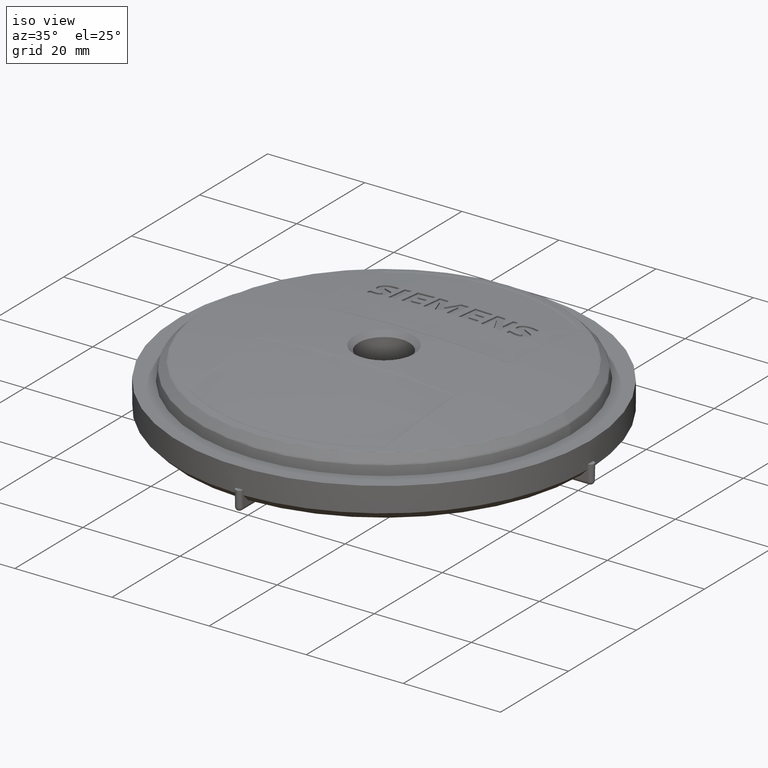
[diagram: clean part render]
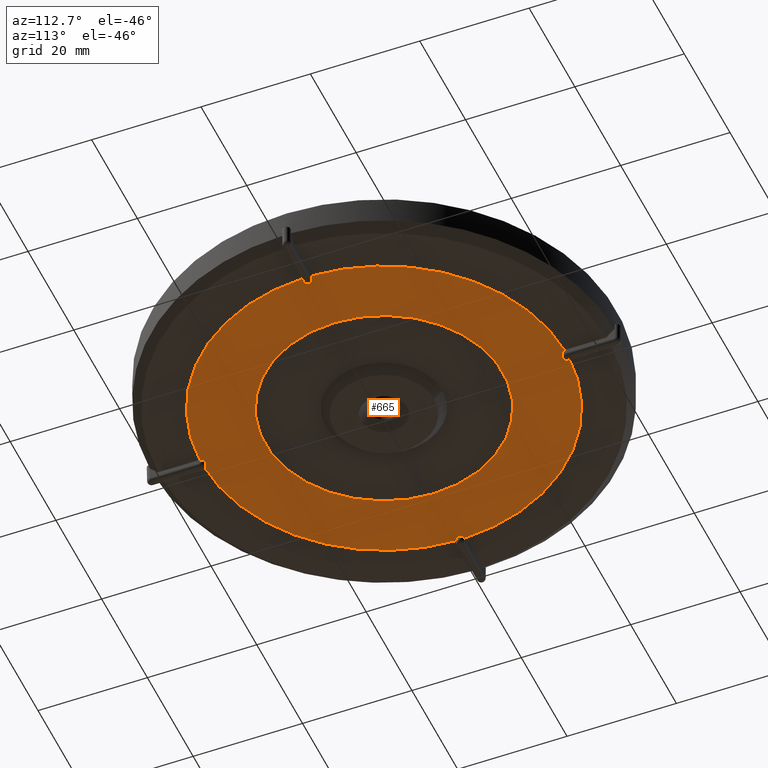
[diagram: tour spotlight — one face highlighted and labeled with its STEP entity id]
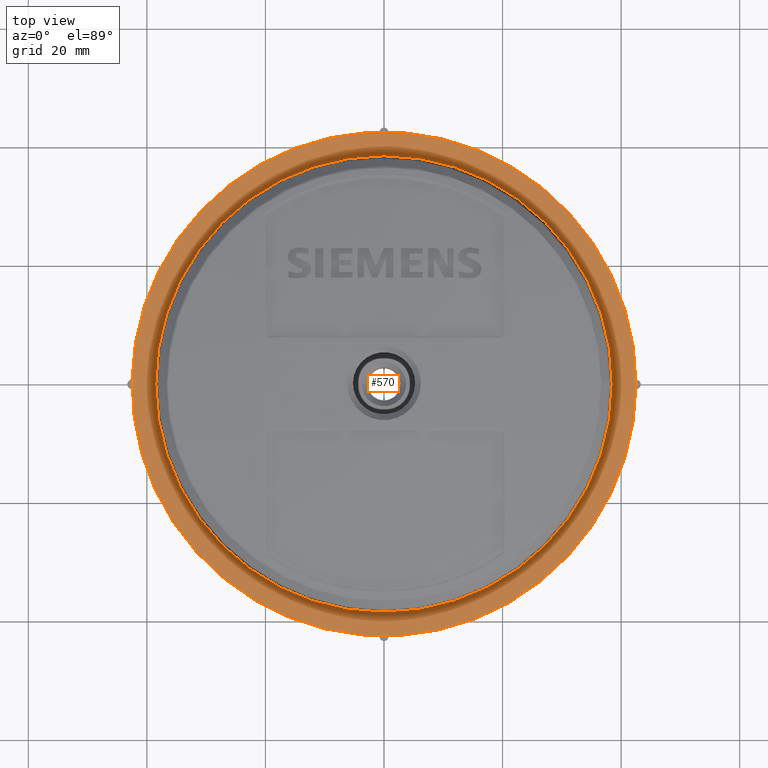
[diagram: tour spotlight — one face highlighted and labeled with its STEP entity id]
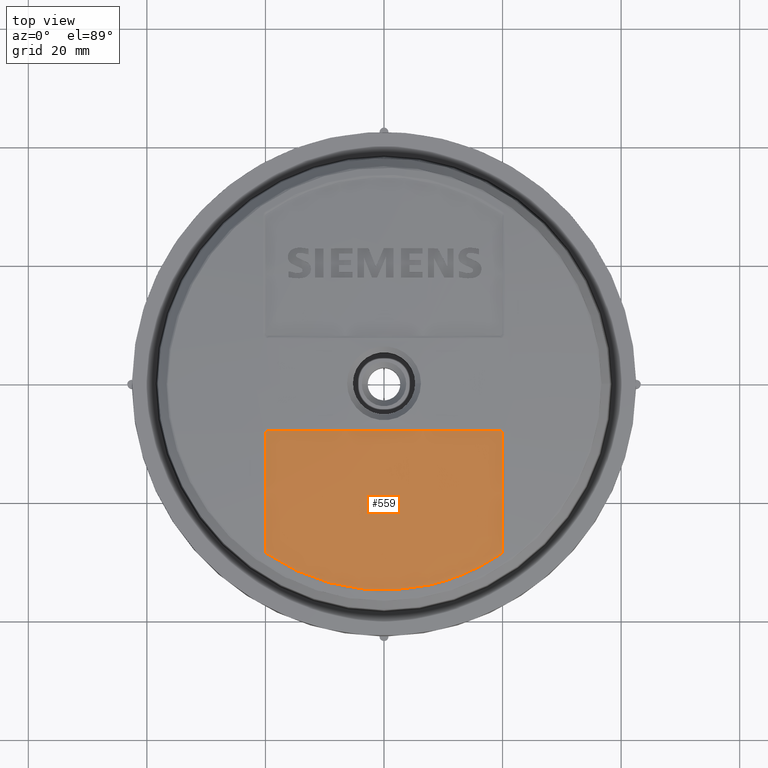
[diagram: tour spotlight — one face highlighted and labeled with its STEP entity id]
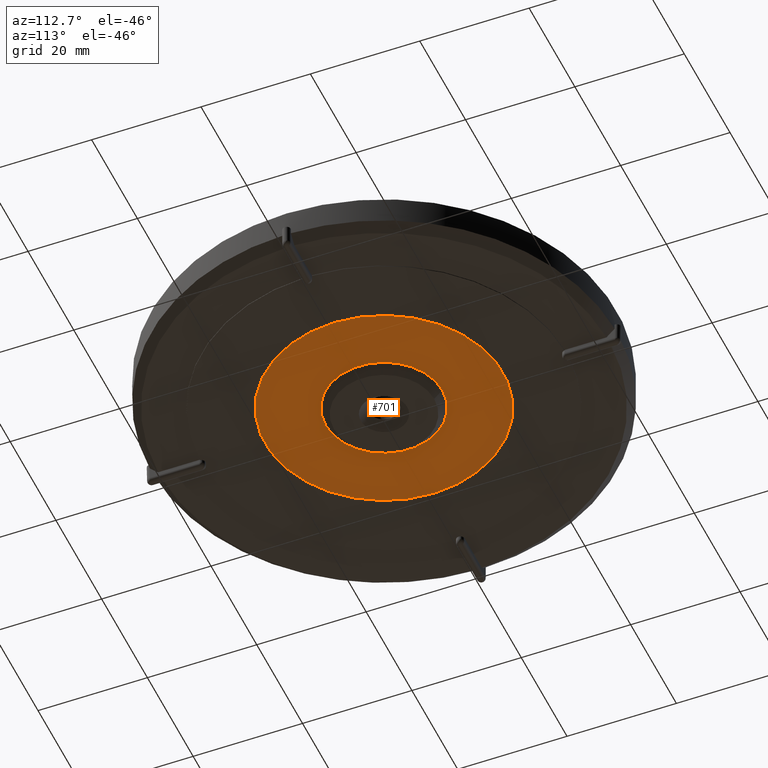
[diagram: tour spotlight — one face highlighted and labeled with its STEP entity id]
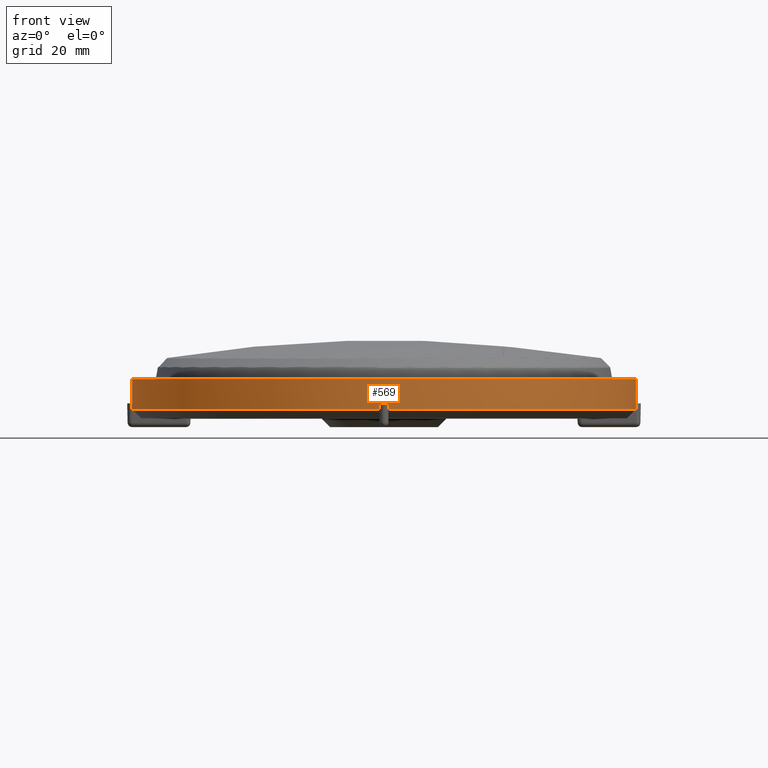
[diagram: tour spotlight — one face highlighted and labeled with its STEP entity id]
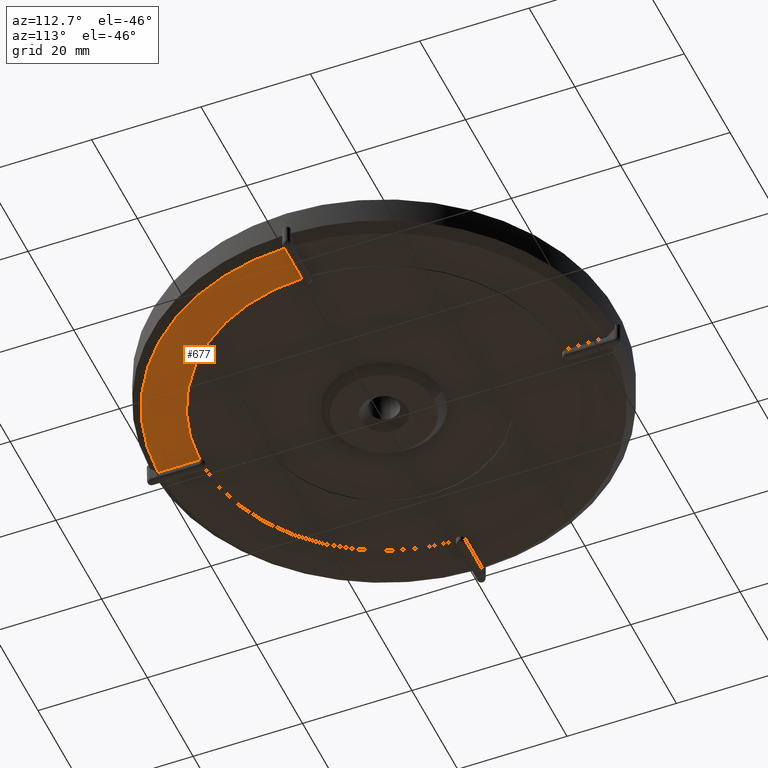
[diagram: tour spotlight — one face highlighted and labeled with its STEP entity id]
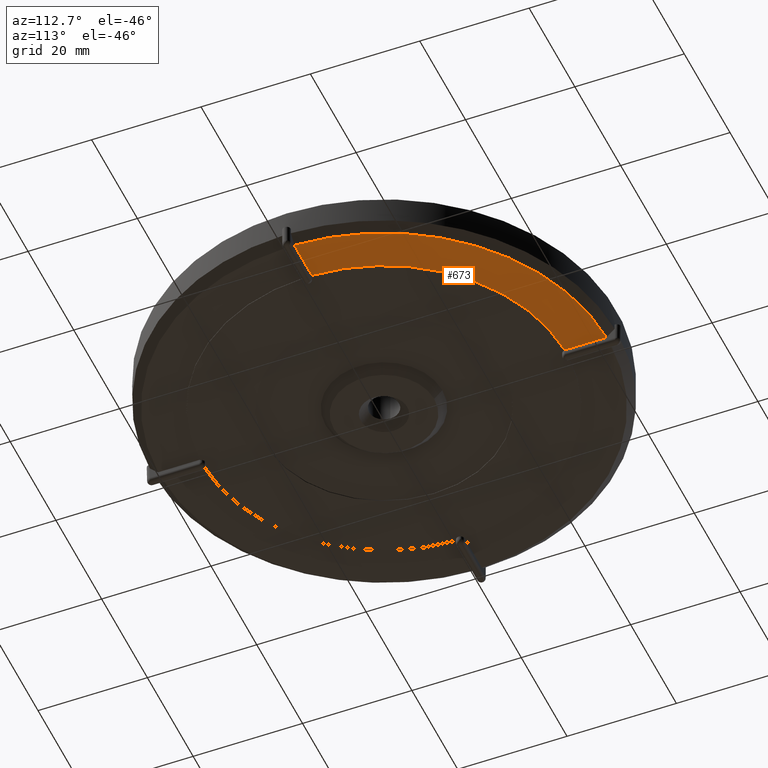
[diagram: tour spotlight — one face highlighted and labeled with its STEP entity id]
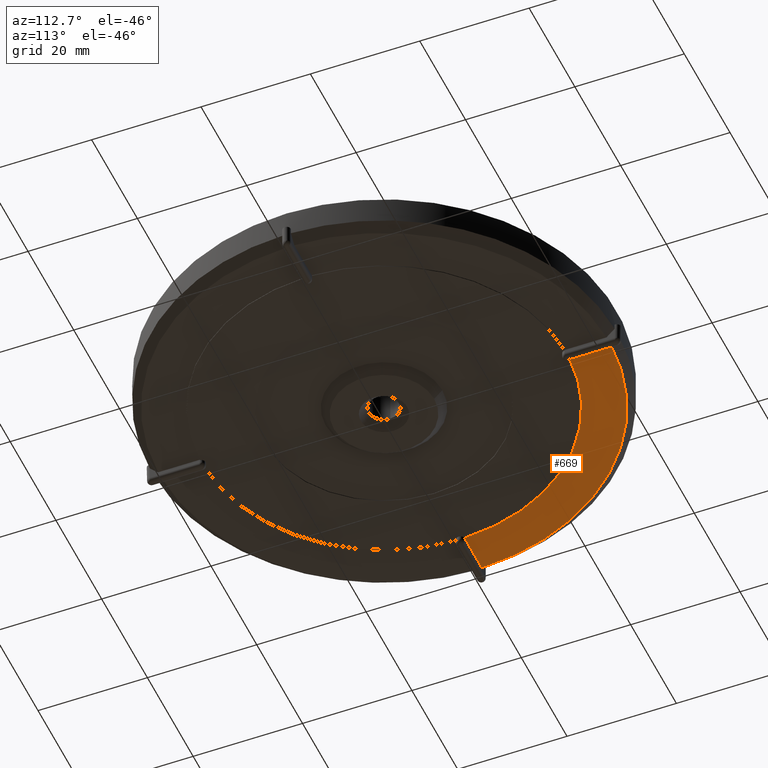
[diagram: tour spotlight — one face highlighted and labeled with its STEP entity id]
A machine part: a face-by-face anatomy tour. The part has 146 B-rep faces; the first image is the clean iso view, then the 8 largest visible faces are spotlighted one at a time (largest first), each with its STEP entity span.

Face 1 — auxiliary view, entity #665. In plain terms, the highlighted planar face has unit normal (0, 0, -1).
Definition (entity closure, byte-faithful):
#407=PLANE('',#2616);
#462=FACE_BOUND('',#978,.T.);
#463=FACE_BOUND('',#979,.T.);
#515=CIRCLE('',#2582,21.75);
#523=CIRCLE('',#2594,33.35);
#528=CIRCLE('',#2602,33.35);
#533=CIRCLE('',#2609,33.35);
#534=CIRCLE('',#2611,0.750000000000001);
#535=CIRCLE('',#2612,33.35);
#536=CIRCLE('',#2613,0.75);
#537=CIRCLE('',#2614,0.750000000000001);
#538=CIRCLE('',#2615,0.75);
#665=ADVANCED_FACE('',(#462,#463),#407,.T.);
#978=EDGE_LOOP('',(#1550));
#979=EDGE_LOOP('',(#1551,#1552,#1553,#1554,#1555,#1556,#1557,#1558));
#1550=ORIENTED_EDGE('',*,*,#2256,.T.);
#1551=ORIENTED_EDGE('',*,*,#2279,.F.);
#1552=ORIENTED_EDGE('',*,*,#2281,.F.);
#1553=ORIENTED_EDGE('',*,*,#2282,.F.);
#1554=ORIENTED_EDGE('',*,*,#2283,.F.);
#1555=ORIENTED_EDGE('',*,*,#2265,.T.);
#1556=ORIENTED_EDGE('',*,*,#2284,.F.);
#1557=ORIENTED_EDGE('',*,*,#2271,.T.);
#1558=ORIENTED_EDGE('',*,*,#2285,.F.);
#1936=VERTEX_POINT('',#8725);
#1945=VERTEX_POINT('',#8746);
#1946=VERTEX_POINT('',#8748);
#1951=VERTEX_POINT('',#8762);
#1952=VERTEX_POINT('',#8763);
#1959=VERTEX_POINT('',#8779);
#1960=VERTEX_POINT('',#8781);
#1961=VERTEX_POINT('',#8785);
#1962=VERTEX_POINT('',#8787);
#2256=EDGE_CURVE('',#1936,#1936,#515,.T.);
#2265=EDGE_CURVE('',#1946,#1945,#523,.T.);
#2271=EDGE_CURVE('',#1951,#1952,#528,.T.);
#2279=EDGE_CURVE('',#1959,#1960,#533,.T.);
#2281=EDGE_CURVE('',#1961,#1959,#534,.T.);
#2282=EDGE_CURVE('',#1962,#1961,#535,.T.);
#2283=EDGE_CURVE('',#1946,#1962,#536,.T.);
#2284=EDGE_CURVE('',#1951,#1945,#537,.T.);
#2285=EDGE_CURVE('',#1960,#1952,#538,.T.);
#2582=AXIS2_PLACEMENT_3D('',#8724,#2918,#2919);
#2594=AXIS2_PLACEMENT_3D('',#8747,#2943,#2944);
#2602=AXIS2_PLACEMENT_3D('',#8761,#2960,#2961);
#2609=AXIS2_PLACEMENT_3D('',#8780,#2977,#2978);
#2611=AXIS2_PLACEMENT_3D('',#8784,#2982,#2983);
#2612=AXIS2_PLACEMENT_3D('',#8786,#2984,#2985);
#2613=AXIS2_PLACEMENT_3D('',#8788,#2986,#2987);
#2614=AXIS2_PLACEMENT_3D('',#8789,#2988,#2989);
#2615=AXIS2_PLACEMENT_3D('',#8790,#2990,#2991);
#2616=AXIS2_PLACEMENT_3D('',#8791,#2992,#2993);
#2918=DIRECTION('',(0.,0.,1.));
#2919=DIRECTION('',(1.,0.,0.));
#2943=DIRECTION('',(0.,0.,-1.));
#2944=DIRECTION('',(-1.,0.,0.));
#2960=DIRECTION('',(0.,0.,-1.));
#2961=DIRECTION('',(-1.,0.,0.));
#2977=DIRECTION('',(0.,0.,1.));
#2978=DIRECTION('',(-1.,0.,0.));
#2982=DIRECTION('',(0.,0.,-1.));
#2983=DIRECTION('',(1.,0.,0.));
#2984=DIRECTION('',(0.,0.,1.));
#2985=DIRECTION('',(-1.,3.5527136788005E-15,0.));
#2986=DIRECTION('',(0.,0.,-1.));
#2987=DIRECTION('',(-1.,0.,0.));
#2988=DIRECTION('',(0.,0.,-1.));
#2989=DIRECTION('',(1.,7.105427357601E-15,0.));
#2990=DIRECTION('',(0.,0.,-1.));
#2991=DIRECTION('',(-1.,0.,0.));
#2992=DIRECTION('',(0.,0.,-1.));
#2993=DIRECTION('',(1.,0.,0.));
#8724=CARTESIAN_POINT('',(5.02898827078395E-30,7.86315457190769E-15,1.5));
#8725=CARTESIAN_POINT('',(21.75,7.86315457190769E-15,1.5));
#8746=CARTESIAN_POINT('',(33.3416168768728,0.747724154306903,1.5));
#8747=CARTESIAN_POINT('',(5.02898827078395E-30,7.86315457190769E-15,1.5));
#8748=CARTESIAN_POINT('',(0.747724154306895,33.3416168768728,1.5));
#8761=CARTESIAN_POINT('',(5.02898827078395E-30,7.86315457190769E-15,1.5));
#8762=CARTESIAN_POINT('',(33.3416168768728,-0.747724154306887,1.5));
#8763=CARTESIAN_POINT('',(0.747724154306895,-33.3416168768728,1.5));
#8779=CARTESIAN_POINT('',(-33.3416168768728,-0.747724154306887,1.5));
#8780=CARTESIAN_POINT('',(5.02898827078395E-30,7.86315457190769E-15,1.5));
#8781=CARTESIAN_POINT('',(-0.747724154306895,-33.3416168768728,1.5));
#8784=CARTESIAN_POINT('',(-33.4,7.86315457190769E-15,1.5));
#8785=CARTESIAN_POINT('',(-33.3416168768728,0.747724154306903,1.5));
#8786=CARTESIAN_POINT('',(5.02898827078395E-30,7.86315457190769E-15,1.5));
#8787=CARTESIAN_POINT('',(-0.747724154306895,33.3416168768728,1.5));
#8788=CARTESIAN_POINT('',(5.02898827078395E-30,33.4,1.5));
#8789=CARTESIAN_POINT('',(33.4,7.86315457190769E-15,1.5));
#8790=CARTESIAN_POINT('',(5.02898827078395E-30,-33.4,1.5));
#8791=CARTESIAN_POINT('',(5.02898827078395E-30,7.86315457190769E-15,1.5));

Face 2 — top view, entity #570. In plain terms, the highlighted planar face has unit normal (0, 0, -1).
Definition (entity closure, byte-faithful):
#382=PLANE('',#2521);
#440=FACE_BOUND('',#868,.T.);
#441=FACE_BOUND('',#869,.T.);
#477=CIRCLE('',#2502,38.4999999966234);
#482=CIRCLE('',#2511,42.5);
#570=ADVANCED_FACE('',(#440,#441),#382,.F.);
#868=EDGE_LOOP('',(#1079));
#869=EDGE_LOOP('',(#1080));
#1079=ORIENTED_EDGE('',*,*,#2026,.F.);
#1080=ORIENTED_EDGE('',*,*,#2031,.F.);
#1780=VERTEX_POINT('',#3823);
#1785=VERTEX_POINT('',#3837);
#2026=EDGE_CURVE('',#1780,#1780,#477,.T.);
#2031=EDGE_CURVE('',#1785,#1785,#482,.T.);
#2502=AXIS2_PLACEMENT_3D('',#3822,#2694,#2695);
#2511=AXIS2_PLACEMENT_3D('',#3836,#2712,#2713);
#2521=AXIS2_PLACEMENT_3D('',#3871,#2740,#2741);
#2694=DIRECTION('',(0.,0.,1.));
#2695=DIRECTION('',(-1.,0.,0.));
#2712=DIRECTION('',(0.,0.,-1.));
#2713=DIRECTION('',(1.,0.,0.));
#2740=DIRECTION('',(0.,0.,-1.));
#2741=DIRECTION('',(1.,0.,0.));
#3822=CARTESIAN_POINT('',(5.02898827078395E-30,7.86315457190769E-15,8.2000000191495));
#3823=CARTESIAN_POINT('',(-38.4999999966234,7.86315457190769E-15,8.2000000191495));
#3836=CARTESIAN_POINT('',(5.02898827078395E-30,7.86315457190769E-15,8.2));
#3837=CARTESIAN_POINT('',(42.5,7.86315457190769E-15,8.2));
#3871=CARTESIAN_POINT('',(38.5,7.86315457190769E-15,8.2));

Face 3 — top view, entity #559. In plain terms, the highlighted spherical surface has radius 226.9 mm.
Definition (entity closure, byte-faithful):
#559=ADVANCED_FACE('',(#723),#705,.T.);
#705=SPHERICAL_SURFACE('',#2494,226.9);
#723=FACE_OUTER_BOUND('',#850,.T.);
#850=EDGE_LOOP('',(#1023,#1024,#1025,#1026,#1027,#1028,#1029,#1030,#1031));
#1023=ORIENTED_EDGE('',*,*,#1996,.T.);
#1024=ORIENTED_EDGE('',*,*,#1997,.T.);
#1025=ORIENTED_EDGE('',*,*,#1998,.T.);
#1026=ORIENTED_EDGE('',*,*,#1999,.T.);
#1027=ORIENTED_EDGE('',*,*,#2000,.T.);
#1028=ORIENTED_EDGE('',*,*,#2001,.T.);
#1029=ORIENTED_EDGE('',*,*,#2002,.T.);
#1030=ORIENTED_EDGE('',*,*,#2003,.T.);
#1031=ORIENTED_EDGE('',*,*,#2004,.T.);
#1751=VERTEX_POINT('',#3173);
#1752=VERTEX_POINT('',#3174);
#1753=VERTEX_POINT('',#3179);
#1754=VERTEX_POINT('',#3184);
#1755=VERTEX_POINT('',#3195);
#1756=VERTEX_POINT('',#3204);
#1757=VERTEX_POINT('',#3215);
#1758=VERTEX_POINT('',#3238);
#1759=VERTEX_POINT('',#3255);
#1996=EDGE_CURVE('',#1751,#1752,#2360,.T.);
#1997=EDGE_CURVE('',#1752,#1753,#2361,.T.);
#1998=EDGE_CURVE('',#1753,#1754,#2362,.T.);
#1999=EDGE_CURVE('',#1754,#1755,#2363,.T.);
#2000=EDGE_CURVE('',#1755,#1756,#2364,.T.);
#2001=EDGE_CURVE('',#1756,#1757,#2365,.T.);
#2002=EDGE_CURVE('',#1757,#1758,#2366,.T.);
#2003=EDGE_CURVE('',#1758,#1759,#2367,.T.);
#2004=EDGE_CURVE('',#1759,#1751,#2368,.T.);
#2360=B_SPLINE_CURVE_WITH_KNOTS('',3,(#3163,#3164,#3165,#3166,#3167,#3168,
#3169,#3170,#3171,#3172),.UNSPECIFIED.,.F.,.F.,(4,3,3,4),(0.,0.441844815911512,
0.883763586078794,1.),.UNSPECIFIED.);
#2361=B_SPLINE_CURVE_WITH_KNOTS('',3,(#3175,#3176,#3177,#3178),
 .UNSPECIFIED.,.F.,.F.,(4,4),(0.,1.),.UNSPECIFIED.);
#2362=B_SPLINE_CURVE_WITH_KNOTS('',3,(#3180,#3181,#3182,#3183),
 .UNSPECIFIED.,.F.,.F.,(4,4),(0.,1.),.UNSPECIFIED.);
#2363=B_SPLINE_CURVE_WITH_KNOTS('',3,(#3185,#3186,#3187,#3188,#3189,#3190,
#3191,#3192,#3193,#3194),.UNSPECIFIED.,.F.,.F.,(4,3,3,4),(0.,0.349748603555243,
0.699670056190108,1.),.UNSPECIFIED.);
#2364=B_SPLINE_CURVE_WITH_KNOTS('',3,(#3196,#3197,#3198,#3199,#3200,#3201,
#3202,#3203),.UNSPECIFIED.,.F.,.F.,(4,2,2,4),(0.,0.25,0.5,1.),
 .UNSPECIFIED.);
#2365=B_SPLINE_CURVE_WITH_KNOTS('',3,(#3205,#3206,#3207,#3208,#3209,#3210,
#3211,#3212,#3213,#3214),.UNSPECIFIED.,.F.,.F.,(4,3,3,4),(0.,0.34457287359404,
0.688887980524164,1.),.UNSPECIFIED.);
#2366=B_SPLINE_CURVE_WITH_KNOTS('',3,(#3216,#3217,#3218,#3219,#3220,#3221,
#3222,#3223,#3224,#3225,#3226,#3227,#3228,#3229,#3230,#3231,#3232,#3233,
#3234,#3235,#3236,#3237),.UNSPECIFIED.,.F.,.F.,(4,3,3,3,3,3,3,4),(0.,0.0398692730273485,
0.199353699502414,0.35883812525478,0.43857740471627,0.59806183141129,0.757546257585214,
1.),.UNSPECIFIED.);
#2367=B_SPLINE_CURVE_WITH_KNOTS('',3,(#3239,#3240,#3241,#3242,#3243,#3244,
#3245,#3246,#3247,#3248,#3249,#3250,#3251,#3252,#3253,#3254),
 .UNSPECIFIED.,.F.,.F.,(4,3,3,3,3,4),(0.,0.214425581148635,0.428424755097419,
0.647072766724221,0.860592475561766,1.),.UNSPECIFIED.);
#2368=B_SPLINE_CURVE_WITH_KNOTS('',3,(#3256,#3257,#3258,#3259),
 .UNSPECIFIED.,.F.,.F.,(4,4),(0.,1.),.UNSPECIFIED.);
#2494=AXIS2_PLACEMENT_3D('',#3260,#2678,#2679);
#2678=DIRECTION('',(1.,5.99231979005811E-16,-6.23858244335423E-15));
#2679=DIRECTION('',(6.34577210855718E-15,-0.0345442266834354,0.999403170098456));
#3163=CARTESIAN_POINT('',(-19.4999999393654,-8.00000043448486,13.6489235000314));
#3164=CARTESIAN_POINT('',(-19.5562036281012,-8.00000798782321,13.6440720589185));
#3165=CARTESIAN_POINT('',(-19.6131390241475,-8.00978265560136,13.6387898728615));
#3166=CARTESIAN_POINT('',(-19.6661211621882,-8.02842294156388,13.6335150313193));
#3167=CARTESIAN_POINT('',(-19.7191050741138,-8.04706385161822,13.6282400131713));
#3168=CARTESIAN_POINT('',(-19.7695598624239,-8.07518531548535,13.6228265075518));
#3169=CARTESIAN_POINT('',(-19.8133501440105,-8.11038413197744,13.6177217232106));
#3170=CARTESIAN_POINT('',(-19.825021693527,-8.11976577362774,13.6163611303792));
#3171=CARTESIAN_POINT('',(-19.8362856836583,-8.12968123480841,13.6150156149987));
#3172=CARTESIAN_POINT('',(-19.847067800053,-8.14007785497986,13.6136935952991));
#3173=CARTESIAN_POINT('',(-19.4999993466149,-7.99999839714231,13.6489166298762));
#3174=CARTESIAN_POINT('',(-19.8470673581621,-8.14007831649309,13.6136936207594));
#3175=CARTESIAN_POINT('',(-19.8470676922342,-8.14007803546075,13.6136935982686));
#3176=CARTESIAN_POINT('',(-19.9497112354551,-8.23549067654348,13.6012365693895));
#3177=CARTESIAN_POINT('',(-19.9998963483916,-8.35543505709511,13.5923956348657));
#3178=CARTESIAN_POINT('',(-19.9976322592622,-8.49992832263777,13.5871582273481));
#3179=CARTESIAN_POINT('',(-19.9987420503483,-8.50000040961973,13.5884555611073));
#3180=CARTESIAN_POINT('',(-19.9999826780485,-8.49994373125131,13.5869495265606));
#3181=CARTESIAN_POINT('',(-19.999982560637,-15.1133495881016,13.3380593532683));
#3182=CARTESIAN_POINT('',(-19.9999965513895,-21.7123981455922,12.7988361116867));
#3183=CARTESIAN_POINT('',(-19.9999998998205,-28.2784810212322,11.9708025207255));
#3184=CARTESIAN_POINT('',(-19.9999999327874,-28.2784810152145,11.9708024730073));
#3185=CARTESIAN_POINT('',(-19.9999999327874,-28.2784810152145,11.9708024730073));
#3186=CARTESIAN_POINT('',(-20.00000034399,-28.33427483015,11.9637664093513));
#3187=CARTESIAN_POINT('',(-19.9903991424039,-28.3909503641732,11.9574538097474));
#3188=CARTESIAN_POINT('',(-19.9718736448377,-28.443805920091,11.9523988987158));
#3189=CARTESIAN_POINT('',(-19.9533424233254,-28.4966778071413,11.9473424258347));
#3190=CARTESIAN_POINT('',(-19.9253927188913,-28.5472126141004,11.9433995580412));
#3191=CARTESIAN_POINT('',(-19.8902441284095,-28.5910631349691,11.9409259097881));
#3192=CARTESIAN_POINT('',(-19.859961017234,-28.6288436029869,11.9387946788047));
#3193=CARTESIAN_POINT('',(-19.8237494575654,-28.6626004116712,11.9376863365568));
#3194=CARTESIAN_POINT('',(-19.7838427233803,-28.6901035986585,11.9376882957615));
#3195=CARTESIAN_POINT('',(-19.7838427233803,-28.6901035986585,11.9376882957615));
#3196=CARTESIAN_POINT('',(-19.7838431427952,-28.6901042069809,11.9376882515266));
#3197=CARTESIAN_POINT('',(-16.8949424497101,-30.6822040897911,11.9376882735534));
#3198=CARTESIAN_POINT('',(-13.7051210805755,-32.2331802787969,11.9376903192432));
#3199=CARTESIAN_POINT('',(-7.01148609300494,-34.3168939555165,11.9376860971135));
#3200=CARTESIAN_POINT('',(-3.50167204979397,-34.8507607313264,11.9376510535916));
#3201=CARTESIAN_POINT('',(7.01888795406366,-34.8472812528243,11.937948761495));
#3202=CARTESIAN_POINT('',(14.0087144748241,-32.6781147606178,11.9369648169858));
#3203=CARTESIAN_POINT('',(19.7830802438054,-28.6889999355296,11.9378968697719));
#3204=CARTESIAN_POINT('',(19.7837745083785,-28.6900049296173,11.9380033356158));
#3205=CARTESIAN_POINT('',(19.7838431874072,-28.6901045242605,11.9376882069905));
#3206=CARTESIAN_POINT('',(19.8294478917986,-28.6586563792672,11.9376882705328));
#3207=CARTESIAN_POINT('',(19.8703187401828,-28.6189851687315,11.9391371685159));
#3208=CARTESIAN_POINT('',(19.9030273667894,-28.574362600652,11.9419205207504));
#3209=CARTESIAN_POINT('',(19.9357244695527,-28.5297557539138,11.9447028923594));
#3210=CARTESIAN_POINT('',(19.9613301453675,-28.4790854468653,11.9488664175045));
#3211=CARTESIAN_POINT('',(19.9776107784957,-28.4264144559081,11.9540933280005));
#3212=CARTESIAN_POINT('',(19.9923618855156,-28.3786917771685,11.9588291828966));
#3213=CARTESIAN_POINT('',(19.9998261402563,-28.3282631048046,11.9645401165977));
#3214=CARTESIAN_POINT('',(19.9998333793654,-28.2784828235268,11.9708171453117));
#3215=CARTESIAN_POINT('',(19.9999824239061,-28.2784857171837,11.9708399217133));
#3216=CARTESIAN_POINT('',(20.0000005015695,-28.2784809942483,11.9708024704585));
#3217=CARTESIAN_POINT('',(19.9999999436996,-28.0167371486963,12.0038104219002));
#3218=CARTESIAN_POINT('',(19.999999623094,-27.7549351065606,12.0363601230969));
#3219=CARTESIAN_POINT('',(19.9999996982133,-27.4930772740882,12.0684512607514));
#3220=CARTESIAN_POINT('',(19.9999999986974,-26.4456218587295,12.1968187630859));
#3221=CARTESIAN_POINT('',(20.0000053911446,-25.397241619546,12.3178526179353));
#3222=CARTESIAN_POINT('',(20.000008074119,-24.3480909061111,12.4315357007222));
#3223=CARTESIAN_POINT('',(20.0000107570933,-23.2989401958559,12.5452187831646));
#3224=CARTESIAN_POINT('',(20.0000107306799,-22.2489675500141,12.651556669847));
#3225=CARTESIAN_POINT('',(20.0000081139348,-21.1983274580807,12.7505337039768));
#3226=CARTESIAN_POINT('',(20.0000068055863,-20.6730170744665,12.8000213107861));
#3227=CARTESIAN_POINT('',(20.0000049734263,-20.1475301790762,12.8476697391134));
#3228=CARTESIAN_POINT('',(20.0000033748442,-19.6218860963664,12.8934771694279));
#3229=CARTESIAN_POINT('',(20.0000001776212,-18.5705785907691,12.9850937154632));
#3230=CARTESIAN_POINT('',(20.0000007129287,-17.5186035939495,13.0693488511578));
#3231=CARTESIAN_POINT('',(20.0000013098026,-16.4661159338648,13.146230501844));
#3232=CARTESIAN_POINT('',(20.0000019066766,-15.4136282758789,13.2231121523768));
#3233=CARTESIAN_POINT('',(20.0000013252909,-14.3605763370203,13.2926241985037));
#3234=CARTESIAN_POINT('',(20.0000004543046,-13.3071150628355,13.354756333458));
#3235=CARTESIAN_POINT('',(19.9999991302436,-11.7056582826599,13.4492087174494));
#3236=CARTESIAN_POINT('',(20.0000003212338,-10.1031050095989,13.5266140503455));
#3237=CARTESIAN_POINT('',(19.9999994928506,-8.50000017278479,13.5869460799513));
#3238=CARTESIAN_POINT('',(19.9999994928506,-8.50000017278479,13.5869460799513));
#3239=CARTESIAN_POINT('',(19.9999994928506,-8.50000017278479,13.5869460799513));
#3240=CARTESIAN_POINT('',(20.0000694257719,-8.44404273662378,13.589045814172));
#3241=CARTESIAN_POINT('',(19.9899641883382,-8.38739649505386,13.5920509236383));
#3242=CARTESIAN_POINT('',(19.9713889718573,-8.33469221554334,13.5956382192895));
#3243=CARTESIAN_POINT('',(19.9528408448373,-8.28206479815293,13.5992202833513));
#3244=CARTESIAN_POINT('',(19.9253014098576,-8.23183520361848,13.6034875531346));
#3245=CARTESIAN_POINT('',(19.8906926057933,-8.18816260538438,13.6081183311249));
#3246=CARTESIAN_POINT('',(19.85537690976,-8.14359798531398,13.6128436937117));
#3247=CARTESIAN_POINT('',(19.8115303279849,-8.10484565979752,13.618087331818));
#3248=CARTESIAN_POINT('',(19.7632288869173,-8.07493801753441,13.6233822845998));
#3249=CARTESIAN_POINT('',(19.7160217353336,-8.04570794549893,13.6285572779969));
#3250=CARTESIAN_POINT('',(19.6632012251511,-8.02412666360211,13.6339287364399));
#3251=CARTESIAN_POINT('',(19.6090053210807,-8.01203744073809,13.6390617181304));
#3252=CARTESIAN_POINT('',(19.5733342750859,-8.00408046996289,13.6424401805643));
#3253=CARTESIAN_POINT('',(19.5365673716606,-8.00000030423995,13.6457672178187));
#3254=CARTESIAN_POINT('',(19.4999997814081,-8.00000019138514,13.6489235222737));
#3255=CARTESIAN_POINT('',(19.4999992450893,-7.99999798442486,13.6489173086343));
#3256=CARTESIAN_POINT('',(19.4999998593487,-7.99997452080362,13.6489244245641));
#3257=CARTESIAN_POINT('',(6.52450969082663,-7.9999449603334,14.7688938719605));
#3258=CARTESIAN_POINT('',(-6.5245097614414,-7.99994423732795,14.7688939006637));
#3259=CARTESIAN_POINT('',(-19.5000000199975,-7.99997395447909,13.6489244307519));
#3260=CARTESIAN_POINT('',(1.04083408558608E-14,1.57916735243901E-13,-212.27));

Face 4 — auxiliary view, entity #701. In plain terms, the highlighted planar face has unit normal (0, 0, -1).
Definition (entity closure, byte-faithful):
#424=PLANE('',#2670);
#464=FACE_BOUND('',#1015,.T.);
#465=FACE_BOUND('',#1016,.T.);
#514=CIRCLE('',#2581,21.75);
#556=CIRCLE('',#2669,10.6749999999993);
#701=ADVANCED_FACE('',(#464,#465),#424,.T.);
#1015=EDGE_LOOP('',(#1743));
#1016=EDGE_LOOP('',(#1744));
#1743=ORIENTED_EDGE('',*,*,#2357,.F.);
#1744=ORIENTED_EDGE('',*,*,#2255,.T.);
#1935=VERTEX_POINT('',#8723);
#1993=VERTEX_POINT('',#8953);
#2255=EDGE_CURVE('',#1935,#1935,#514,.T.);
#2357=EDGE_CURVE('',#1993,#1993,#556,.T.);
#2581=AXIS2_PLACEMENT_3D('',#8722,#2916,#2917);
#2669=AXIS2_PLACEMENT_3D('',#8952,#3148,#3149);
#2670=AXIS2_PLACEMENT_3D('',#8954,#3150,#3151);
#2916=DIRECTION('',(0.,0.,-1.));
#2917=DIRECTION('',(1.,0.,0.));
#3148=DIRECTION('',(0.,-2.03129212643667E-17,-1.));
#3149=DIRECTION('',(0.,1.,-2.03129212643667E-17));
#3150=DIRECTION('',(0.,0.,-1.));
#3151=DIRECTION('',(1.,0.,0.));
#8722=CARTESIAN_POINT('',(5.02898827078395E-30,7.86315457190769E-15,1.6));
#8723=CARTESIAN_POINT('',(21.75,7.86315457190769E-15,1.6));
#8952=CARTESIAN_POINT('',(5.02898827078395E-30,7.86315457190769E-15,1.60000000000067));
#8953=CARTESIAN_POINT('',(5.02898827078395E-30,10.6749999999993,1.60000000000067));
#8954=CARTESIAN_POINT('',(5.02898827078395E-30,7.86315457190769E-15,1.6));

Face 5 — front view, entity #569. In plain terms, the highlighted cylindrical surface (bore or boss wall) has radius 42.5 mm, axis along (0, 0, 1).
Definition (entity closure, byte-faithful):
#60=LINE('',#3841,#180);
#61=LINE('',#3845,#181);
#62=LINE('',#3849,#182);
#63=LINE('',#3853,#183);
#64=LINE('',#3857,#184);
#65=LINE('',#3861,#185);
#66=LINE('',#3865,#186);
#67=LINE('',#3869,#187);
#180=VECTOR('',#2716,1.);
#181=VECTOR('',#2719,1.);
#182=VECTOR('',#2722,1.);
#183=VECTOR('',#2725,1.);
#184=VECTOR('',#2728,1.);
#185=VECTOR('',#2731,1.);
#186=VECTOR('',#2734,1.);
#187=VECTOR('',#2737,1.);
#312=CYLINDRICAL_SURFACE('',#2520,42.5);
#438=FACE_BOUND('',#866,.T.);
#439=FACE_BOUND('',#867,.T.);
#482=CIRCLE('',#2511,42.5);
#483=CIRCLE('',#2512,42.5);
#484=CIRCLE('',#2513,42.5);
#485=CIRCLE('',#2514,42.5);
#486=CIRCLE('',#2515,42.5);
#487=CIRCLE('',#2516,42.5);
#488=CIRCLE('',#2517,42.5);
#489=CIRCLE('',#2518,42.5);
#490=CIRCLE('',#2519,42.5);
#569=ADVANCED_FACE('',(#438,#439),#312,.T.);
#866=EDGE_LOOP('',(#1062));
#867=EDGE_LOOP('',(#1063,#1064,#1065,#1066,#1067,#1068,#1069,#1070,#1071,
#1072,#1073,#1074,#1075,#1076,#1077,#1078));
#1062=ORIENTED_EDGE('',*,*,#2031,.T.);
#1063=ORIENTED_EDGE('',*,*,#2032,.T.);
#1064=ORIENTED_EDGE('',*,*,#2033,.T.);
#1065=ORIENTED_EDGE('',*,*,#2034,.T.);
#1066=ORIENTED_EDGE('',*,*,#2035,.T.);
#1067=ORIENTED_EDGE('',*,*,#2036,.T.);
#1068=ORIENTED_EDGE('',*,*,#2037,.T.);
#1069=ORIENTED_EDGE('',*,*,#2038,.T.);
#1070=ORIENTED_EDGE('',*,*,#2039,.T.);
#1071=ORIENTED_EDGE('',*,*,#2040,.T.);
#1072=ORIENTED_EDGE('',*,*,#2041,.T.);
#1073=ORIENTED_EDGE('',*,*,#2042,.T.);
#1074=ORIENTED_EDGE('',*,*,#2043,.T.);
#1075=ORIENTED_EDGE('',*,*,#2044,.T.);
#1076=ORIENTED_EDGE('',*,*,#2045,.T.);
#1077=ORIENTED_EDGE('',*,*,#2046,.T.);
#1078=ORIENTED_EDGE('',*,*,#2047,.T.);
#1785=VERTEX_POINT('',#3837);
#1786=VERTEX_POINT('',#3839);
#1787=VERTEX_POINT('',#3840);
#1788=VERTEX_POINT('',#3842);
#1789=VERTEX_POINT('',#3844);
#1790=VERTEX_POINT('',#3846);
#1791=VERTEX_POINT('',#3848);
#1792=VERTEX_POINT('',#3850);
#1793=VERTEX_POINT('',#3852);
#1794=VERTEX_POINT('',#3854);
#1795=VERTEX_POINT('',#3856);
#1796=VERTEX_POINT('',#3858);
#1797=VERTEX_POINT('',#3860);
#1798=VERTEX_POINT('',#3862);
#1799=VERTEX_POINT('',#3864);
#1800=VERTEX_POINT('',#3866);
#1801=VERTEX_POINT('',#3868);
#2031=EDGE_CURVE('',#1785,#1785,#482,.T.);
#2032=EDGE_CURVE('',#1786,#1787,#483,.T.);
#2033=EDGE_CURVE('',#1787,#1788,#60,.T.);
#2034=EDGE_CURVE('',#1788,#1789,#484,.T.);
#2035=EDGE_CURVE('',#1789,#1790,#61,.T.);
#2036=EDGE_CURVE('',#1790,#1791,#485,.T.);
#2037=EDGE_CURVE('',#1791,#1792,#62,.T.);
#2038=EDGE_CURVE('',#1792,#1793,#486,.T.);
#2039=EDGE_CURVE('',#1793,#1794,#63,.T.);
#2040=EDGE_CURVE('',#1794,#1795,#487,.T.);
#2041=EDGE_CURVE('',#1795,#1796,#64,.T.);
#2042=EDGE_CURVE('',#1796,#1797,#488,.T.);
#2043=EDGE_CURVE('',#1797,#1798,#65,.T.);
#2044=EDGE_CURVE('',#1798,#1799,#489,.T.);
#2045=EDGE_CURVE('',#1799,#1800,#66,.T.);
#2046=EDGE_CURVE('',#1800,#1801,#490,.T.);
#2047=EDGE_CURVE('',#1801,#1786,#67,.T.);
#2511=AXIS2_PLACEMENT_3D('',#3836,#2712,#2713);
#2512=AXIS2_PLACEMENT_3D('',#3838,#2714,#2715);
#2513=AXIS2_PLACEMENT_3D('',#3843,#2717,#2718);
#2514=AXIS2_PLACEMENT_3D('',#3847,#2720,#2721);
#2515=AXIS2_PLACEMENT_3D('',#3851,#2723,#2724);
#2516=AXIS2_PLACEMENT_3D('',#3855,#2726,#2727);
#2517=AXIS2_PLACEMENT_3D('',#3859,#2729,#2730);
#2518=AXIS2_PLACEMENT_3D('',#3863,#2732,#2733);
#2519=AXIS2_PLACEMENT_3D('',#3867,#2735,#2736);
#2520=AXIS2_PLACEMENT_3D('',#3870,#2738,#2739);
#2712=DIRECTION('',(0.,0.,-1.));
#2713=DIRECTION('',(1.,0.,0.));
#2714=DIRECTION('',(0.,0.,1.));
#2715=DIRECTION('',(-1.,-4.35207425653061E-14,0.));
#2716=DIRECTION('',(0.,0.,-1.));
#2717=DIRECTION('',(0.,0.,1.));
#2718=DIRECTION('',(-1.,0.,0.));
#2719=DIRECTION('',(0.,0.,1.));
#2720=DIRECTION('',(0.,0.,1.));
#2721=DIRECTION('',(-1.,0.,0.));
#2722=DIRECTION('',(0.,0.,-1.));
#2723=DIRECTION('',(0.,0.,1.));
#2724=DIRECTION('',(-1.,0.,0.));
#2725=DIRECTION('',(0.,0.,1.));
#2726=DIRECTION('',(0.,0.,1.));
#2727=DIRECTION('',(-1.,0.,0.));
#2728=DIRECTION('',(0.,0.,-1.));
#2729=DIRECTION('',(0.,0.,1.));
#2730=DIRECTION('',(-1.,0.,0.));
#2731=DIRECTION('',(0.,0.,1.));
#2732=DIRECTION('',(0.,0.,1.));
#2733=DIRECTION('',(-1.,-3.01980662698043E-14,0.));
#2734=DIRECTION('',(0.,0.,-1.));
#2735=DIRECTION('',(0.,0.,1.));
#2736=DIRECTION('',(-1.,0.,0.));
#2737=DIRECTION('',(0.,0.,1.));
#2738=DIRECTION('',(0.,0.,1.));
#2739=DIRECTION('',(-1.,0.,0.));
#3836=CARTESIAN_POINT('',(5.02898827078395E-30,7.86315457190769E-15,8.2));
#3837=CARTESIAN_POINT('',(42.5,7.86315457190769E-15,8.2));
#3838=CARTESIAN_POINT('',(5.02898827078395E-30,7.86315457190769E-15,4.1));
#3839=CARTESIAN_POINT('',(-42.4933818376715,0.749999998567698,4.1));
#3840=CARTESIAN_POINT('',(-42.4933818376715,-0.749999998567696,4.1));
#3841=CARTESIAN_POINT('',(-42.4933818376968,-0.7499999971354,5.2));
#3842=CARTESIAN_POINT('',(-42.4933818376842,-0.749999998567696,3.10000000001276));
#3843=CARTESIAN_POINT('',(5.02898827078395E-30,7.86315457190769E-15,3.1));
#3844=CARTESIAN_POINT('',(-0.749999998567695,-42.4933818376841,3.10000000001258));
#3845=CARTESIAN_POINT('',(-0.749999997135389,-42.4933818376968,5.2));
#3846=CARTESIAN_POINT('',(-0.749999998567695,-42.4933818376715,4.1));
#3847=CARTESIAN_POINT('',(5.02898827078395E-30,7.86315457190769E-15,4.1));
#3848=CARTESIAN_POINT('',(0.749999998567702,-42.4933818376715,4.1));
#3849=CARTESIAN_POINT('',(0.749999997135405,-42.4933818376968,5.2));
#3850=CARTESIAN_POINT('',(0.749999998567702,-42.4933818376842,3.10000000001276));
#3851=CARTESIAN_POINT('',(5.02898827078395E-30,7.86315457190769E-15,3.1));
#3852=CARTESIAN_POINT('',(42.4933818376841,-0.749999998567679,3.10000000001258));
#3853=CARTESIAN_POINT('',(42.4933818376968,-0.749999997135365,5.2));
#3854=CARTESIAN_POINT('',(42.4933818376715,-0.749999998567679,4.1));
#3855=CARTESIAN_POINT('',(5.02898827078395E-30,7.86315457190769E-15,4.1));
#3856=CARTESIAN_POINT('',(42.4933818376715,0.7499999985677,4.1));
#3857=CARTESIAN_POINT('',(42.4933818376968,0.749999997135391,5.2));
#3858=CARTESIAN_POINT('',(42.4933818376842,0.7499999985677,3.10000000001276));
#3859=CARTESIAN_POINT('',(5.02898827078395E-30,7.86315457190769E-15,3.1));
#3860=CARTESIAN_POINT('',(0.749999998567688,42.4933818376841,3.10000000001258));
#3861=CARTESIAN_POINT('',(0.749999997135376,42.4933818376968,5.2));
#3862=CARTESIAN_POINT('',(0.749999998567688,42.4933818376715,4.1));
#3863=CARTESIAN_POINT('',(5.02898827078395E-30,7.86315457190769E-15,4.1));
#3864=CARTESIAN_POINT('',(-0.74999999856769,42.4933818376715,4.1));
#3865=CARTESIAN_POINT('',(-0.749999997135381,42.4933818376968,5.2));
#3866=CARTESIAN_POINT('',(-0.74999999856769,42.4933818592434,3.10000002156854));
#3867=CARTESIAN_POINT('',(5.02898827078395E-30,7.86315457190769E-15,3.1));
#3868=CARTESIAN_POINT('',(-42.4933818554388,0.749999998567698,3.10000001776451));
#3869=CARTESIAN_POINT('',(-42.4933818376968,0.749999997135387,5.2));
#3870=CARTESIAN_POINT('',(5.02898827078395E-30,7.86315457190769E-15,3.7));

Face 6 — auxiliary view, entity #677. In plain terms, the highlighted planar face has unit normal (0, 0, -1).
Definition (entity closure, byte-faithful):
#148=LINE('',#8866,#268);
#149=LINE('',#8870,#269);
#268=VECTOR('',#3058,1.);
#269=VECTOR('',#3061,1.);
#410=PLANE('',#2642);
#529=CIRCLE('',#2603,33.35);
#550=CIRCLE('',#2638,0.750000000000001);
#551=CIRCLE('',#2640,41.0000001649982);
#552=CIRCLE('',#2641,0.75);
#677=ADVANCED_FACE('',(#826),#410,.T.);
#826=FACE_OUTER_BOUND('',#991,.T.);
#991=EDGE_LOOP('',(#1611,#1612,#1613,#1614,#1615,#1616));
#1611=ORIENTED_EDGE('',*,*,#2318,.F.);
#1612=ORIENTED_EDGE('',*,*,#2319,.F.);
#1613=ORIENTED_EDGE('',*,*,#2320,.F.);
#1614=ORIENTED_EDGE('',*,*,#2321,.T.);
#1615=ORIENTED_EDGE('',*,*,#2273,.T.);
#1616=ORIENTED_EDGE('',*,*,#2316,.F.);
#1953=VERTEX_POINT('',#8765);
#1954=VERTEX_POINT('',#8767);
#1981=VERTEX_POINT('',#8862);
#1982=VERTEX_POINT('',#8867);
#1983=VERTEX_POINT('',#8869);
#1984=VERTEX_POINT('',#8871);
#2273=EDGE_CURVE('',#1954,#1953,#529,.T.);
#2316=EDGE_CURVE('',#1981,#1953,#550,.T.);
#2318=EDGE_CURVE('',#1982,#1981,#148,.T.);
#2319=EDGE_CURVE('',#1983,#1982,#551,.T.);
#2320=EDGE_CURVE('',#1984,#1983,#149,.T.);
#2321=EDGE_CURVE('',#1984,#1954,#552,.T.);
#2603=AXIS2_PLACEMENT_3D('',#8766,#2963,#2964);
#2638=AXIS2_PLACEMENT_3D('',#8863,#3053,#3054);
#2640=AXIS2_PLACEMENT_3D('',#8868,#3059,#3060);
#2641=AXIS2_PLACEMENT_3D('',#8872,#3062,#3063);
#2642=AXIS2_PLACEMENT_3D('',#8873,#3064,#3065);
#2963=DIRECTION('',(0.,0.,1.));
#2964=DIRECTION('',(-1.,0.,0.));
#3053=DIRECTION('',(0.,0.,-1.));
#3054=DIRECTION('',(1.,-7.105427357601E-14,0.));
#3058=DIRECTION('',(-1.,0.,0.));
#3059=DIRECTION('',(0.,-5.10212786077625E-18,1.));
#3060=DIRECTION('',(0.,1.,5.28879106401121E-18));
#3061=DIRECTION('',(0.,-1.,0.));
#3062=DIRECTION('',(0.,0.,1.));
#3063=DIRECTION('',(-1.,-1.38777878078145E-13,0.));
#3064=DIRECTION('',(0.,0.,-1.));
#3065=DIRECTION('',(1.,0.,0.));
#8765=CARTESIAN_POINT('',(33.3416168768728,-0.747724154306887,1.6));
#8766=CARTESIAN_POINT('',(5.02898827078395E-30,7.86315457190769E-15,1.6));
#8767=CARTESIAN_POINT('',(0.747724154306895,-33.3416168768728,1.6));
#8862=CARTESIAN_POINT('',(33.4,-0.749999999999992,1.6));
#8863=CARTESIAN_POINT('',(33.4,7.86315457190769E-15,1.6));
#8866=CARTESIAN_POINT('',(22.875,-0.749999999999992,1.6));
#8867=CARTESIAN_POINT('',(40.9931397524633,-0.749999999999992,1.60000008249844));
#8868=CARTESIAN_POINT('',(5.02898827078395E-30,7.87080776327113E-15,1.60000016499689));
#8869=CARTESIAN_POINT('',(0.75,-40.9931397524632,1.60000008249844));
#8870=CARTESIAN_POINT('',(0.75,-22.875,1.6));
#8871=CARTESIAN_POINT('',(0.75,-33.4,1.6));
#8872=CARTESIAN_POINT('',(5.02898827078395E-30,-33.4,1.6));
#8873=CARTESIAN_POINT('',(5.02898827078395E-30,7.86315457190769E-15,1.6));

Face 7 — auxiliary view, entity #673. In plain terms, the highlighted planar face has unit normal (0, 0, -1).
Definition (entity closure, byte-faithful):
#140=LINE('',#8838,#260);
#141=LINE('',#8842,#261);
#260=VECTOR('',#3036,1.);
#261=VECTOR('',#3039,1.);
#409=PLANE('',#2635);
#522=CIRCLE('',#2593,33.35);
#547=CIRCLE('',#2631,0.75);
#548=CIRCLE('',#2633,41.0000001649982);
#549=CIRCLE('',#2634,0.750000000000001);
#673=ADVANCED_FACE('',(#822),#409,.T.);
#822=FACE_OUTER_BOUND('',#987,.T.);
#987=EDGE_LOOP('',(#1589,#1590,#1591,#1592,#1593,#1594));
#1589=ORIENTED_EDGE('',*,*,#2306,.F.);
#1590=ORIENTED_EDGE('',*,*,#2307,.F.);
#1591=ORIENTED_EDGE('',*,*,#2308,.F.);
#1592=ORIENTED_EDGE('',*,*,#2309,.T.);
#1593=ORIENTED_EDGE('',*,*,#2263,.T.);
#1594=ORIENTED_EDGE('',*,*,#2304,.F.);
#1943=VERTEX_POINT('',#8743);
#1944=VERTEX_POINT('',#8744);
#1975=VERTEX_POINT('',#8834);
#1976=VERTEX_POINT('',#8839);
#1977=VERTEX_POINT('',#8841);
#1978=VERTEX_POINT('',#8843);
#2263=EDGE_CURVE('',#1943,#1944,#522,.T.);
#2304=EDGE_CURVE('',#1975,#1944,#547,.T.);
#2306=EDGE_CURVE('',#1976,#1975,#140,.T.);
#2307=EDGE_CURVE('',#1977,#1976,#548,.T.);
#2308=EDGE_CURVE('',#1978,#1977,#141,.T.);
#2309=EDGE_CURVE('',#1978,#1943,#549,.T.);
#2593=AXIS2_PLACEMENT_3D('',#8742,#2940,#2941);
#2631=AXIS2_PLACEMENT_3D('',#8835,#3031,#3032);
#2633=AXIS2_PLACEMENT_3D('',#8840,#3037,#3038);
#2634=AXIS2_PLACEMENT_3D('',#8844,#3040,#3041);
#2635=AXIS2_PLACEMENT_3D('',#8845,#3042,#3043);
#2940=DIRECTION('',(0.,0.,1.));
#2941=DIRECTION('',(-1.,8.88178419700125E-16,0.));
#3031=DIRECTION('',(0.,0.,-1.));
#3032=DIRECTION('',(-1.,0.,0.));
#3036=DIRECTION('',(0.,-1.,0.));
#3037=DIRECTION('',(0.,0.,1.));
#3038=DIRECTION('',(1.,0.,0.));
#3039=DIRECTION('',(1.,0.,0.));
#3040=DIRECTION('',(0.,0.,1.));
#3041=DIRECTION('',(-1.,-2.1493917756743E-13,0.));
#3042=DIRECTION('',(0.,0.,-1.));
#3043=DIRECTION('',(1.,0.,0.));
#8742=CARTESIAN_POINT('',(5.02898827078395E-30,7.86315457190769E-15,1.6));
#8743=CARTESIAN_POINT('',(33.3416168768728,0.747724154306903,1.6));
#8744=CARTESIAN_POINT('',(0.747724154306895,33.3416168768728,1.6));
#8834=CARTESIAN_POINT('',(0.75,33.4,1.6));
#8835=CARTESIAN_POINT('',(5.02898827078395E-30,33.4,1.6));
#8838=CARTESIAN_POINT('',(0.75,22.875,1.6));
#8839=CARTESIAN_POINT('',(0.75,40.9931397524633,1.60000008249844));
#8840=CARTESIAN_POINT('',(5.02898827078395E-30,7.86315457190769E-15,1.60000016499689));
#8841=CARTESIAN_POINT('',(40.9931397524633,0.750000000000008,1.60000008249844));
#8842=CARTESIAN_POINT('',(22.875,0.750000000000008,1.6));
#8843=CARTESIAN_POINT('',(33.4,0.750000000000008,1.6));
#8844=CARTESIAN_POINT('',(33.4,7.86315457190769E-15,1.6));
#8845=CARTESIAN_POINT('',(5.02898827078395E-30,7.86315457190769E-15,1.6));

Face 8 — auxiliary view, entity #669. In plain terms, the highlighted planar face has unit normal (0, 0, -1).
Definition (entity closure, byte-faithful):
#132=LINE('',#8808,#252);
#133=LINE('',#8813,#253);
#252=VECTOR('',#3012,1.);
#253=VECTOR('',#3015,1.);
#408=PLANE('',#2628);
#539=CIRCLE('',#2617,33.35);
#544=CIRCLE('',#2625,41.0000001649982);
#545=CIRCLE('',#2626,0.75);
#546=CIRCLE('',#2627,0.750000000000001);
#669=ADVANCED_FACE('',(#818),#408,.T.);
#818=FACE_OUTER_BOUND('',#983,.T.);
#983=EDGE_LOOP('',(#1567,#1568,#1569,#1570,#1571,#1572));
#1567=ORIENTED_EDGE('',*,*,#2293,.F.);
#1568=ORIENTED_EDGE('',*,*,#2294,.F.);
#1569=ORIENTED_EDGE('',*,*,#2295,.F.);
#1570=ORIENTED_EDGE('',*,*,#2296,.T.);
#1571=ORIENTED_EDGE('',*,*,#2286,.T.);
#1572=ORIENTED_EDGE('',*,*,#2297,.T.);
#1963=VERTEX_POINT('',#8793);
#1964=VERTEX_POINT('',#8794);
#1969=VERTEX_POINT('',#8809);
#1970=VERTEX_POINT('',#8810);
#1971=VERTEX_POINT('',#8812);
#1972=VERTEX_POINT('',#8814);
#2286=EDGE_CURVE('',#1963,#1964,#539,.T.);
#2293=EDGE_CURVE('',#1969,#1970,#132,.T.);
#2294=EDGE_CURVE('',#1971,#1969,#544,.T.);
#2295=EDGE_CURVE('',#1972,#1971,#133,.T.);
#2296=EDGE_CURVE('',#1972,#1963,#545,.T.);
#2297=EDGE_CURVE('',#1964,#1970,#546,.T.);
#2617=AXIS2_PLACEMENT_3D('',#8792,#2994,#2995);
#2625=AXIS2_PLACEMENT_3D('',#8811,#3013,#3014);
#2626=AXIS2_PLACEMENT_3D('',#8815,#3016,#3017);
#2627=AXIS2_PLACEMENT_3D('',#8816,#3018,#3019);
#2628=AXIS2_PLACEMENT_3D('',#8817,#3020,#3021);
#2994=DIRECTION('',(0.,0.,1.));
#2995=DIRECTION('',(-1.,1.77635683940025E-15,0.));
#3012=DIRECTION('',(1.,0.,0.));
#3013=DIRECTION('',(0.,-5.10212786077625E-18,1.));
#3014=DIRECTION('',(0.,1.,5.28879106401121E-18));
#3015=DIRECTION('',(0.,1.,0.));
#3016=DIRECTION('',(0.,0.,1.));
#3017=DIRECTION('',(-1.,0.,0.));
#3018=DIRECTION('',(0.,0.,1.));
#3019=DIRECTION('',(-1.,5.32907051820075E-14,0.));
#3020=DIRECTION('',(0.,0.,-1.));
#3021=DIRECTION('',(1.,0.,0.));
#8792=CARTESIAN_POINT('',(5.02898827078395E-30,7.86315457190769E-15,1.6));
#8793=CARTESIAN_POINT('',(-0.747724154306895,33.3416168768728,1.6));
#8794=CARTESIAN_POINT('',(-33.3416168768728,0.747724154306861,1.6));
#8808=CARTESIAN_POINT('',(-22.875,0.750000000000008,1.6));
#8809=CARTESIAN_POINT('',(-40.9931397524633,0.750000000000008,1.60000008249844));
#8810=CARTESIAN_POINT('',(-33.4,0.750000000000008,1.6));
#8811=CARTESIAN_POINT('',(5.02898827078395E-30,7.87080776327113E-15,1.60000016499689));
#8812=CARTESIAN_POINT('',(-0.75,40.9931397524633,1.60000008249844));
#8813=CARTESIAN_POINT('',(-0.75,22.875,1.6));
#8814=CARTESIAN_POINT('',(-0.75,33.4,1.6));
#8815=CARTESIAN_POINT('',(5.02898827078395E-30,33.4,1.6));
#8816=CARTESIAN_POINT('',(-33.4,7.86315457190769E-15,1.6));
#8817=CARTESIAN_POINT('',(5.02898827078395E-30,7.86315457190769E-15,1.6));